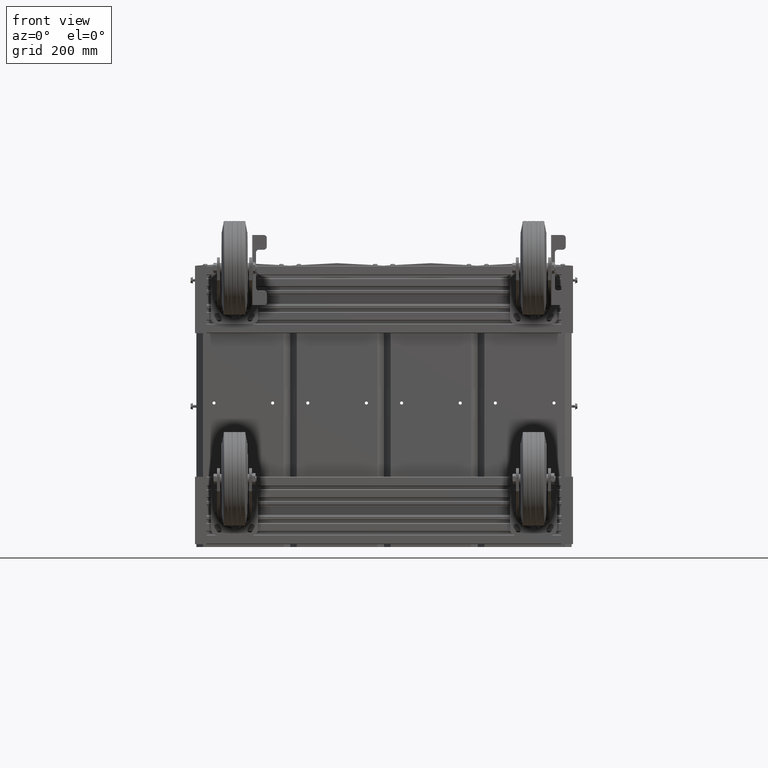
[diagram: clean part render]
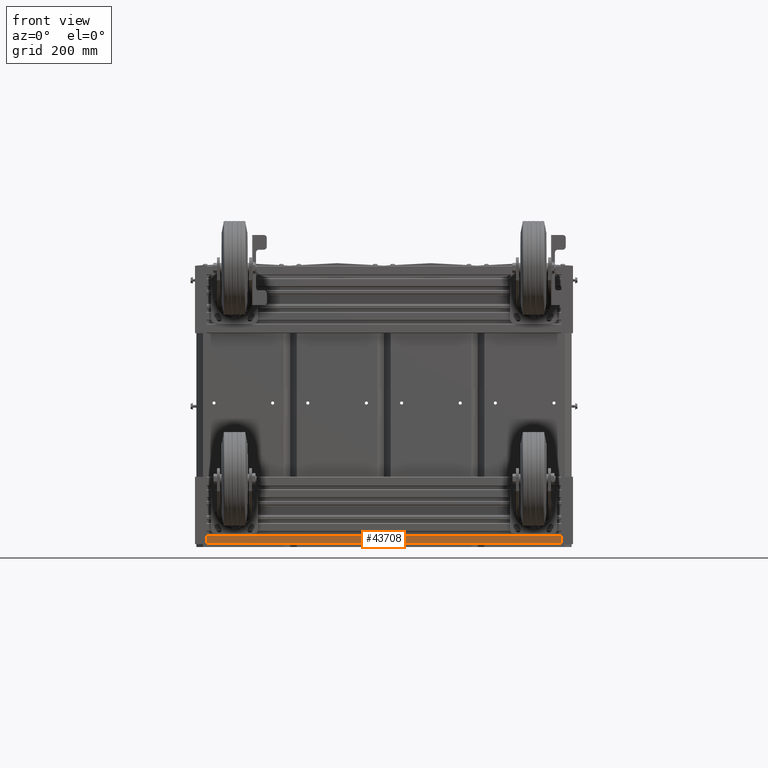
[diagram: same view with one face highlighted and labeled with its STEP entity id]
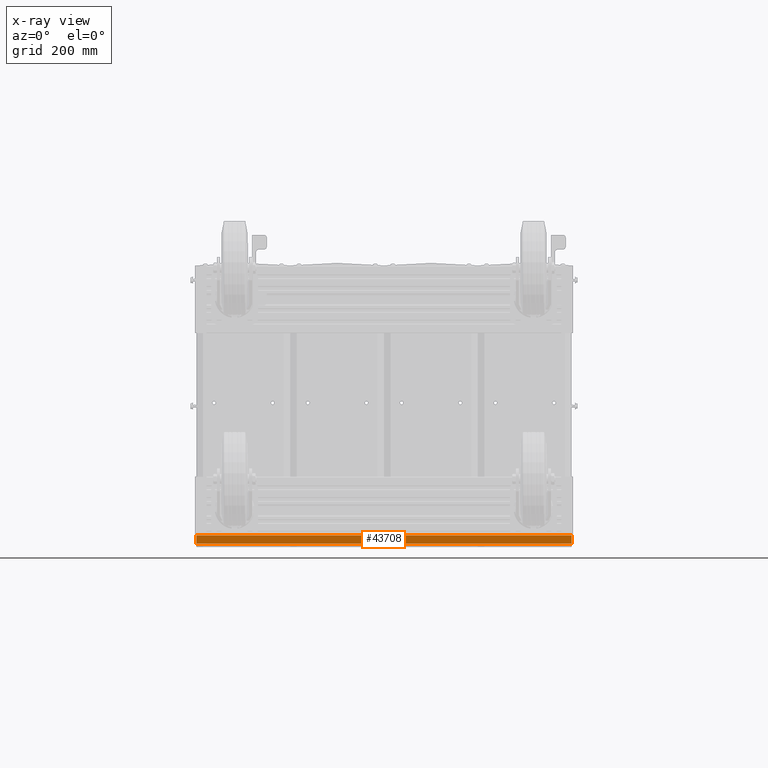
[diagram: x-ray of the same camera — body ghosted, the highlighted face saturated]
A machine part, front view. The second image highlights one B-rep face of the part: STEP entity #43708.
The next image is the same camera in x-ray: the body ghosted, the highlighted face saturated — about 0% of this face is hidden behind the body in this view.
In plain terms, the highlighted planar face has unit normal (-0, -1, -0).
Its self-contained STEP definition (entity closure, byte-faithful):
#2109 = AXIS2_PLACEMENT_3D ( 'NONE', #13536, #13546, #13547 ) ;
#4241 = CARTESIAN_POINT ( 'NONE',  ( -2.119626587736547700, 0.8749999999999997800, -16.00000000000000000 ) ) ;
#4253 = DIRECTION ( 'NONE',  ( -1.000000000000000000, -1.838681805167706800E-016, -1.127372781454506900E-018 ) ) ;
#4255 = CARTESIAN_POINT ( 'NONE',  ( -2.810373412263494200, 0.8749999999999997800, -16.00000000000000000 ) ) ;
#4260 = CARTESIAN_POINT ( 'NONE',  ( -2.119626587736547700, 0.8749999999999997800, -16.00000000000000000 ) ) ;
#4261 = DIRECTION ( 'NONE',  ( 1.127372781454506300E-018, -5.035386116999651000E-018, 1.000000000000000000 ) ) ;
#4267 = DIRECTION ( 'NONE',  ( 1.127372781454506300E-018, -5.035386116999651000E-018, 1.000000000000000000 ) ) ;
#4268 = CARTESIAN_POINT ( 'NONE',  ( -2.119626587736547700, 0.8749999999999997800, 15.99999999999999800 ) ) ;
#4269 = DIRECTION ( 'NONE',  ( -1.000000000000000000, -1.838681805167706800E-016, -1.127372781454506900E-018 ) ) ;
#5288 = LINE ( 'NONE', #4241, #5297 ) ;
#5297 = VECTOR ( 'NONE', #4253, 39.37007874015748100 ) ;
#5298 = LINE ( 'NONE', #4255, #5305 ) ;
#5300 = LINE ( 'NONE', #4260, #5311 ) ;
#5305 = VECTOR ( 'NONE', #4261, 39.37007874015748100 ) ;
#5311 = VECTOR ( 'NONE', #4267, 39.37007874015748100 ) ;
#5313 = LINE ( 'NONE', #4268, #5314 ) ;
#5314 = VECTOR ( 'NONE', #4269, 39.37007874015748100 ) ;
#7805 = FACE_OUTER_BOUND ( 'NONE', #31798, .T. ) ;
#11126 = CARTESIAN_POINT ( 'NONE',  ( -2.810373412263494200, 0.8749999999999997800, 15.99999999999999800 ) ) ;
#11128 = CARTESIAN_POINT ( 'NONE',  ( -2.810373412263494200, 0.8749999999999997800, -16.00000000000000000 ) ) ;
#11130 = CARTESIAN_POINT ( 'NONE',  ( -2.119626587736547700, 0.8749999999999997800, 15.99999999999999800 ) ) ;
#11131 = CARTESIAN_POINT ( 'NONE',  ( -2.119626587736547700, 0.8749999999999997800, -16.00000000000000000 ) ) ;
#13536 = CARTESIAN_POINT ( 'NONE',  ( -2.119626587736547700, 0.8749999999999997800, -16.00000000000000000 ) ) ;
#13541 = PLANE ( 'NONE',  #2109 ) ;
#13546 = DIRECTION ( 'NONE',  ( -1.838681805167706800E-016, 1.000000000000000000, -5.035386116999651800E-018 ) ) ;
#13547 = DIRECTION ( 'NONE',  ( -1.000000000000000000, -1.838681805167706800E-016, -1.127372781454506900E-018 ) ) ;
#31798 = EDGE_LOOP ( 'NONE', ( #40132, #40133, #40134, #40135 ) ) ;
#35203 = EDGE_CURVE ( 'NONE', #38069, #38067, #5288, .T. ) ;
#35208 = EDGE_CURVE ( 'NONE', #38067, #38066, #5298, .T. ) ;
#35211 = EDGE_CURVE ( 'NONE', #38069, #38068, #5300, .T. ) ;
#35212 = EDGE_CURVE ( 'NONE', #38068, #38066, #5313, .T. ) ;
#38066 = VERTEX_POINT ( 'NONE', #11126 ) ;
#38067 = VERTEX_POINT ( 'NONE', #11128 ) ;
#38068 = VERTEX_POINT ( 'NONE', #11130 ) ;
#38069 = VERTEX_POINT ( 'NONE', #11131 ) ;
#40132 = ORIENTED_EDGE ( 'NONE', *, *, #35212, .F. ) ;
#40133 = ORIENTED_EDGE ( 'NONE', *, *, #35211, .F. ) ;
#40134 = ORIENTED_EDGE ( 'NONE', *, *, #35203, .T. ) ;
#40135 = ORIENTED_EDGE ( 'NONE', *, *, #35208, .T. ) ;
#43708 = ADVANCED_FACE ( 'NONE', ( #7805 ), #13541, .T. ) ;